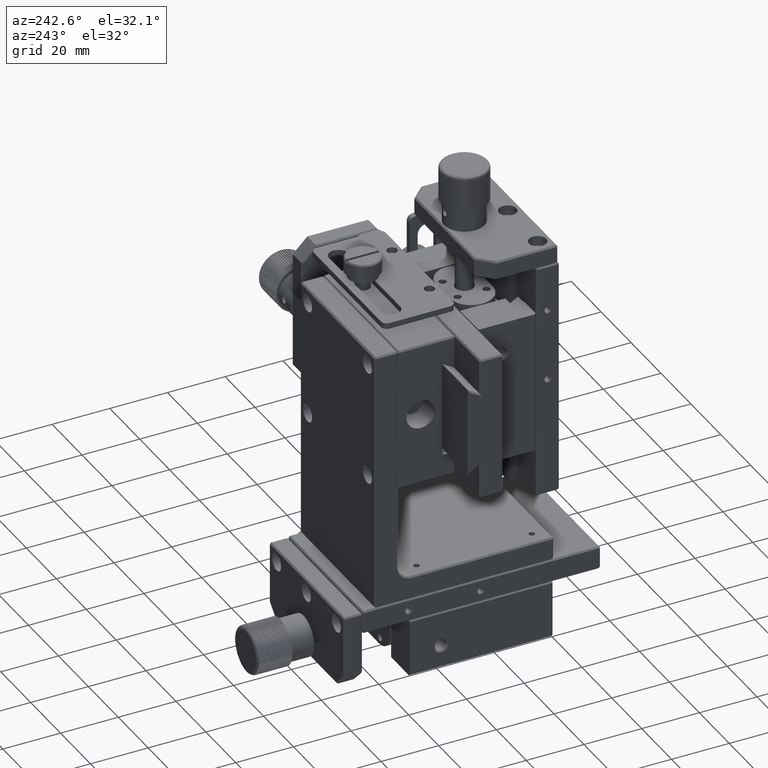
[diagram: clean part render]
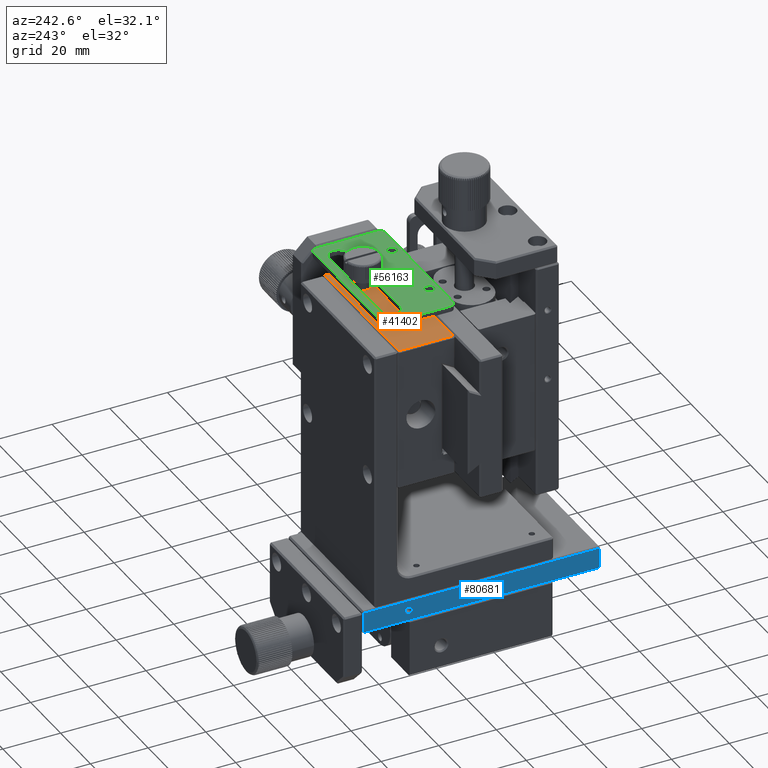
[diagram: same view with three faces highlighted in distinct colors, each labeled with its STEP entity id]
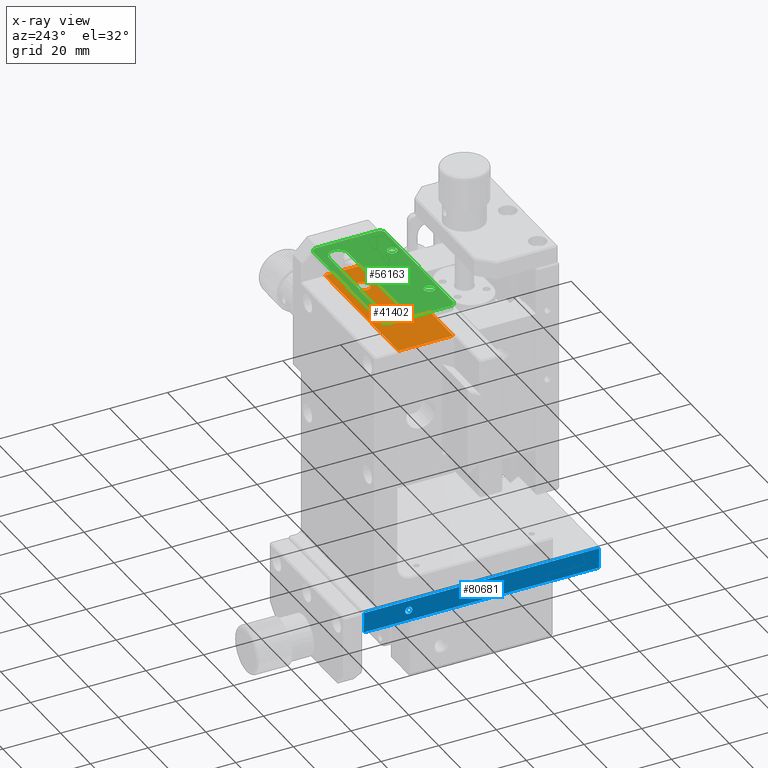
[diagram: x-ray of the same camera — body ghosted, the three highlighted faces saturated]
A machine part, auxiliary view with three faces highlighted in distinct colors.
The next image is the same camera in x-ray (body ghosted, the three faces saturated) — at least one of them is partly hidden behind the body in this view.
Their STEP definitions:

[orange] entity #41402 — the highlighted planar face has unit normal (0, 0, -1).
#332 = CARTESIAN_POINT ( 'NONE',  ( 11.40000000000000213, 48.00000000000000000, 66.14999999999999147 ) ) ;
#1020 = CARTESIAN_POINT ( 'NONE',  ( 24.89999999999999858, 55.50000000000000711, 66.15000000000000568 ) ) ;
#5361 = CARTESIAN_POINT ( 'NONE',  ( 24.89999999999999858, 36.50000000000000711, 66.15000000000000568 ) ) ;
#6214 = CARTESIAN_POINT ( 'NONE',  ( -24.40000000000000924, 36.50000000000000711, 66.15000000000000568 ) ) ;
#6765 = DIRECTION ( 'NONE',  ( -0.000000000000000000, -1.000000000000000000, -0.000000000000000000 ) ) ;
#7975 = CARTESIAN_POINT ( 'NONE',  ( 24.89999999999999858, 55.50000000000000711, 66.15000000000000568 ) ) ;
#11860 = ORIENTED_EDGE ( 'NONE', *, *, #65947, .T. ) ;
#12761 = VECTOR ( 'NONE', #6765, 1000.000000000000000 ) ;
#13646 = EDGE_CURVE ( 'NONE', #35846, #53746, #31547, .T. ) ;
#14098 = CARTESIAN_POINT ( 'NONE',  ( 24.89999999999999858, 56.00000000000000711, 66.15000000000000568 ) ) ;
#18605 = CARTESIAN_POINT ( 'NONE',  ( -24.40000000000000213, 55.50000000000000711, 66.15000000000000568 ) ) ;
#18870 = EDGE_LOOP ( 'NONE', ( #40390 ) ) ;
#20597 = FACE_OUTER_BOUND ( 'NONE', #29166, .T. ) ;
#21294 = LINE ( 'NONE', #46177, #55507 ) ;
#22509 = FACE_BOUND ( 'NONE', #18870, .T. ) ;
#25081 = LINE ( 'NONE', #1020, #58496 ) ;
#25116 = LINE ( 'NONE', #56086, #12761 ) ;
#25561 = EDGE_CURVE ( 'NONE', #33031, #35846, #21294, .T. ) ;
#25813 = DIRECTION ( 'NONE',  ( 0.000000000000000000, 1.000000000000000000, 0.000000000000000000 ) ) ;
#25860 = VECTOR ( 'NONE', #25813, 1000.000000000000000 ) ;
#29166 = EDGE_LOOP ( 'NONE', ( #49250, #57171, #11860, #35559 ) ) ;
#29454 = CIRCLE ( 'NONE', #71088, 2.500000000000000444 ) ;
#29683 = CARTESIAN_POINT ( 'NONE',  ( 13.90000000000000213, 48.00000000000000000, 66.14999999999999147 ) ) ;
#31547 = LINE ( 'NONE', #49892, #25860 ) ;
#32841 = PLANE ( 'NONE',  #35554 ) ;
#33031 = VERTEX_POINT ( 'NONE', #5361 ) ;
#35554 = AXIS2_PLACEMENT_3D ( 'NONE', #14098, #53891, #69908 ) ;
#35559 = ORIENTED_EDGE ( 'NONE', *, *, #13646, .F. ) ;
#35846 = VERTEX_POINT ( 'NONE', #6214 ) ;
#40390 = ORIENTED_EDGE ( 'NONE', *, *, #63258, .F. ) ;
#41126 = DIRECTION ( 'NONE',  ( -0.000000000000000000, -0.000000000000000000, 1.000000000000000000 ) ) ;
#41402 = ADVANCED_FACE ( 'NONE', ( #20597, #22509 ), #32841, .F. ) ;
#43752 = VERTEX_POINT ( 'NONE', #7975 ) ;
#46177 = CARTESIAN_POINT ( 'NONE',  ( 24.89999999999999858, 36.50000000000000711, 66.15000000000000568 ) ) ;
#47634 = DIRECTION ( 'NONE',  ( -1.000000000000000000, 0.000000000000000000, 0.000000000000000000 ) ) ;
#49227 = VERTEX_POINT ( 'NONE', #332 ) ;
#49250 = ORIENTED_EDGE ( 'NONE', *, *, #25561, .F. ) ;
#49892 = CARTESIAN_POINT ( 'NONE',  ( -24.39999999999999858, 56.00000000000000711, 66.15000000000000568 ) ) ;
#53746 = VERTEX_POINT ( 'NONE', #18605 ) ;
#53891 = DIRECTION ( 'NONE',  ( 0.000000000000000000, 0.000000000000000000, -1.000000000000000000 ) ) ;
#55507 = VECTOR ( 'NONE', #64911, 1000.000000000000000 ) ;
#56086 = CARTESIAN_POINT ( 'NONE',  ( 24.89999999999999858, 36.00000000000000711, 66.15000000000000568 ) ) ;
#56847 = DIRECTION ( 'NONE',  ( -1.000000000000000000, -0.000000000000000000, -0.000000000000000000 ) ) ;
#57171 = ORIENTED_EDGE ( 'NONE', *, *, #64979, .F. ) ;
#58496 = VECTOR ( 'NONE', #56847, 1000.000000000000000 ) ;
#63258 = EDGE_CURVE ( 'NONE', #49227, #49227, #29454, .T. ) ;
#64911 = DIRECTION ( 'NONE',  ( -1.000000000000000000, 0.000000000000000000, 0.000000000000000000 ) ) ;
#64979 = EDGE_CURVE ( 'NONE', #43752, #33031, #25116, .T. ) ;
#65947 = EDGE_CURVE ( 'NONE', #43752, #53746, #25081, .T. ) ;
#69908 = DIRECTION ( 'NONE',  ( -1.000000000000000000, 0.000000000000000000, 0.000000000000000000 ) ) ;
#71088 = AXIS2_PLACEMENT_3D ( 'NONE', #29683, #41126, #47634 ) ;

[blue] entity #80681 — the highlighted planar face has unit normal (1, 0, 0).
#3500 = DIRECTION ( 'NONE',  ( -0.000000000000000000, -0.000000000000000000, 1.000000000000000000 ) ) ;
#3930 = CARTESIAN_POINT ( 'NONE',  ( -24.99999999997726263, 53.50000000004638423, -28.75000000000000000 ) ) ;
#6201 = ORIENTED_EDGE ( 'NONE', *, *, #65742, .F. ) ;
#7766 = LINE ( 'NONE', #19597, #69156 ) ;
#7802 = DIRECTION ( 'NONE',  ( 0.000000000000000000, 1.000000000000000000, 0.000000000000000000 ) ) ;
#7842 = EDGE_LOOP ( 'NONE', ( #12157, #17959, #57153, #6201 ) ) ;
#9533 = EDGE_CURVE ( 'NONE', #16984, #16984, #76953, .T. ) ;
#12157 = ORIENTED_EDGE ( 'NONE', *, *, #78639, .F. ) ;
#14961 = CARTESIAN_POINT ( 'NONE',  ( -25.00000000000000000, 67.75000000000000000, -32.75000000000000000 ) ) ;
#16051 = EDGE_CURVE ( 'NONE', #71454, #48875, #79766, .T. ) ;
#16984 = VERTEX_POINT ( 'NONE', #3930 ) ;
#17959 = ORIENTED_EDGE ( 'NONE', *, *, #16051, .F. ) ;
#18059 = CARTESIAN_POINT ( 'NONE',  ( -24.99999999992042277, 27.25000000000000355, -27.49999999998772537 ) ) ;
#19597 = CARTESIAN_POINT ( 'NONE',  ( -25.00000000000000000, 68.25000000000000000, -25.25000000000000000 ) ) ;
#23695 = FACE_BOUND ( 'NONE', #35231, .T. ) ;
#24483 = CARTESIAN_POINT ( 'NONE',  ( -25.00000000000000000, 68.25000000000000000, -32.75000000000000000 ) ) ;
#26859 = ORIENTED_EDGE ( 'NONE', *, *, #9533, .F. ) ;
#27176 = LINE ( 'NONE', #14961, #31081 ) ;
#27549 = VECTOR ( 'NONE', #29478, 1000.000000000000000 ) ;
#29478 = DIRECTION ( 'NONE',  ( -0.000000000000000000, 1.000000000000000000, -0.000000000000000000 ) ) ;
#30456 = EDGE_CURVE ( 'NONE', #68562, #68562, #67110, .T. ) ;
#31081 = VECTOR ( 'NONE', #3500, 1000.000000000000000 ) ;
#31991 = AXIS2_PLACEMENT_3D ( 'NONE', #64138, #77557, #46587 ) ;
#33309 = CARTESIAN_POINT ( 'NONE',  ( -25.00000000000000000, 68.25000000000000000, -32.25000000000000000 ) ) ;
#35231 = EDGE_LOOP ( 'NONE', ( #77098 ) ) ;
#35288 = AXIS2_PLACEMENT_3D ( 'NONE', #38004, #56731, #7802 ) ;
#35539 = FACE_OUTER_BOUND ( 'NONE', #7842, .T. ) ;
#36332 = PLANE ( 'NONE',  #59082 ) ;
#38004 = CARTESIAN_POINT ( 'NONE',  ( -24.99999999997726263, 52.25000000000000711, -28.75000000000000000 ) ) ;
#42058 = DIRECTION ( 'NONE',  ( 0.000000000000000000, -1.000000000000000000, 0.000000000000000000 ) ) ;
#42246 = VERTEX_POINT ( 'NONE', #57804 ) ;
#44876 = CARTESIAN_POINT ( 'NONE',  ( -25.00000000000000000, 67.75000000000000000, -25.25000000000000000 ) ) ;
#46534 = CARTESIAN_POINT ( 'NONE',  ( -25.00000000000000000, -13.75000000000000533, -25.25000000000000000 ) ) ;
#46587 = DIRECTION ( 'NONE',  ( -2.775557561535633446E-15, 0.000000000000000000, 1.000000000000000000 ) ) ;
#48875 = VERTEX_POINT ( 'NONE', #71810 ) ;
#49200 = DIRECTION ( 'NONE',  ( 0.000000000000000000, 0.000000000000000000, -1.000000000000000000 ) ) ;
#51389 = DIRECTION ( 'NONE',  ( 0.000000000000000000, 1.000000000000000000, 0.000000000000000000 ) ) ;
#54047 = VERTEX_POINT ( 'NONE', #44876 ) ;
#56731 = DIRECTION ( 'NONE',  ( -1.000000000000000000, 0.000000000000000000, 0.000000000000000000 ) ) ;
#57153 = ORIENTED_EDGE ( 'NONE', *, *, #73327, .T. ) ;
#57804 = CARTESIAN_POINT ( 'NONE',  ( -25.00000000000000000, 67.75000000000000000, -32.25000000000000000 ) ) ;
#59082 = AXIS2_PLACEMENT_3D ( 'NONE', #24483, #68105, #42058 ) ;
#61605 = FACE_BOUND ( 'NONE', #65319, .T. ) ;
#64138 = CARTESIAN_POINT ( 'NONE',  ( -24.99999999992041921, 27.25000000000000355, -28.75000000000000000 ) ) ;
#65319 = EDGE_LOOP ( 'NONE', ( #26859 ) ) ;
#65742 = EDGE_CURVE ( 'NONE', #42246, #54047, #27176, .T. ) ;
#67110 = CIRCLE ( 'NONE', #31991, 1.250000000012275958 ) ;
#68105 = DIRECTION ( 'NONE',  ( 1.000000000000000000, 0.000000000000000000, 0.000000000000000000 ) ) ;
#68331 = CARTESIAN_POINT ( 'NONE',  ( -25.00000000000000000, -13.75000000000000000, -32.75000000000000000 ) ) ;
#68562 = VERTEX_POINT ( 'NONE', #18059 ) ;
#69156 = VECTOR ( 'NONE', #51389, 1000.000000000000000 ) ;
#71454 = VERTEX_POINT ( 'NONE', #46534 ) ;
#71810 = CARTESIAN_POINT ( 'NONE',  ( -25.00000000000000000, -13.75000000000000355, -32.25000000000000000 ) ) ;
#73327 = EDGE_CURVE ( 'NONE', #71454, #54047, #7766, .T. ) ;
#76953 = CIRCLE ( 'NONE', #35288, 1.250000000046380677 ) ;
#76963 = VECTOR ( 'NONE', #49200, 1000.000000000000000 ) ;
#77098 = ORIENTED_EDGE ( 'NONE', *, *, #30456, .F. ) ;
#77557 = DIRECTION ( 'NONE',  ( -1.000000000000000000, 0.000000000000000000, -1.387778780830925398E-15 ) ) ;
#78639 = EDGE_CURVE ( 'NONE', #48875, #42246, #79203, .T. ) ;
#79203 = LINE ( 'NONE', #33309, #27549 ) ;
#79766 = LINE ( 'NONE', #68331, #76963 ) ;
#80681 = ADVANCED_FACE ( 'NONE', ( #35539, #23695, #61605 ), #36332, .F. ) ;

[green] entity #56163 — the highlighted planar face has unit normal (0, 0, -1).
#453 = AXIS2_PLACEMENT_3D ( 'NONE', #13763, #13365, #38628 ) ;
#1235 = LINE ( 'NONE', #14275, #26511 ) ;
#1753 = VECTOR ( 'NONE', #27899, 1000.000000000000000 ) ;
#1865 = CIRCLE ( 'NONE', #12268, 3.249999999999999556 ) ;
#2418 = VERTEX_POINT ( 'NONE', #69836 ) ;
#2503 = CIRCLE ( 'NONE', #14195, 3.249999999999999556 ) ;
#2783 = LINE ( 'NONE', #27639, #9579 ) ;
#3944 = ORIENTED_EDGE ( 'NONE', *, *, #76406, .F. ) ;
#4362 = LINE ( 'NONE', #29234, #51239 ) ;
#5152 = VERTEX_POINT ( 'NONE', #30452 ) ;
#6431 = CARTESIAN_POINT ( 'NONE',  ( 35.25000000000000000, 29.00000000000000000, 68.25000000000000000 ) ) ;
#8522 = VERTEX_POINT ( 'NONE', #70052 ) ;
#8702 = ORIENTED_EDGE ( 'NONE', *, *, #59336, .F. ) ;
#8708 = EDGE_CURVE ( 'NONE', #65427, #36670, #64938, .T. ) ;
#9579 = VECTOR ( 'NONE', #52501, 1000.000000000000000 ) ;
#9784 = CARTESIAN_POINT ( 'NONE',  ( -4.750000000000004441, 44.75000000000000000, 68.25000000000000000 ) ) ;
#11387 = DIRECTION ( 'NONE',  ( -1.000000000000000000, 0.000000000000000000, 0.000000000000000000 ) ) ;
#12268 = AXIS2_PLACEMENT_3D ( 'NONE', #79859, #74968, #11387 ) ;
#12481 = AXIS2_PLACEMENT_3D ( 'NONE', #68109, #12679, #69706 ) ;
#12679 = DIRECTION ( 'NONE',  ( 0.000000000000000000, 0.000000000000000000, -1.000000000000000000 ) ) ;
#13365 = DIRECTION ( 'NONE',  ( -0.000000000000000000, -0.000000000000000000, 1.000000000000000000 ) ) ;
#13429 = CIRCLE ( 'NONE', #453, 1.750000000000000000 ) ;
#13763 = CARTESIAN_POINT ( 'NONE',  ( 0.2500000000000002220, 32.00000000000000000, 68.25000000000000000 ) ) ;
#14195 = AXIS2_PLACEMENT_3D ( 'NONE', #65052, #20640, #64656 ) ;
#14275 = CARTESIAN_POINT ( 'NONE',  ( 35.25000000000000000, 54.00000000000000711, 68.25000000000000000 ) ) ;
#15787 = CARTESIAN_POINT ( 'NONE',  ( 35.25000000000000000, 54.00000000000000711, 68.25000000000000000 ) ) ;
#16293 = ORIENTED_EDGE ( 'NONE', *, *, #79754, .F. ) ;
#17179 = EDGE_CURVE ( 'NONE', #41011, #59393, #58727, .T. ) ;
#18320 = DIRECTION ( 'NONE',  ( -1.000000000000000000, 0.000000000000000000, 0.000000000000000000 ) ) ;
#18324 = DIRECTION ( 'NONE',  ( 0.000000000000000000, 0.000000000000000000, -1.000000000000000000 ) ) ;
#18579 = EDGE_LOOP ( 'NONE', ( #33411, #56704, #41262, #50845 ) ) ;
#20113 = EDGE_CURVE ( 'NONE', #21516, #29675, #2503, .T. ) ;
#20368 = DIRECTION ( 'NONE',  ( -0.000000000000000000, -0.000000000000000000, 1.000000000000000000 ) ) ;
#20640 = DIRECTION ( 'NONE',  ( -0.000000000000000000, -0.000000000000000000, 1.000000000000000000 ) ) ;
#21481 = LINE ( 'NONE', #32941, #31540 ) ;
#21516 = VERTEX_POINT ( 'NONE', #64149 ) ;
#24291 = CARTESIAN_POINT ( 'NONE',  ( 30.25000000000000711, 51.25000000000000711, 68.25000000000000000 ) ) ;
#24340 = ORIENTED_EDGE ( 'NONE', *, *, #17179, .F. ) ;
#26291 = CARTESIAN_POINT ( 'NONE',  ( -9.750000000000001776, 29.00000000000000000, 68.25000000000000000 ) ) ;
#26511 = VECTOR ( 'NONE', #33413, 1000.000000000000000 ) ;
#26885 = CARTESIAN_POINT ( 'NONE',  ( 37.25000000000000000, 52.00000000000000711, 68.25000000000000000 ) ) ;
#27107 = VERTEX_POINT ( 'NONE', #9784 ) ;
#27387 = EDGE_CURVE ( 'NONE', #48669, #27107, #1865, .T. ) ;
#27639 = CARTESIAN_POINT ( 'NONE',  ( -11.75000000000000000, 31.00000000000000000, 68.25000000000000000 ) ) ;
#27899 = DIRECTION ( 'NONE',  ( -0.000000000000000000, -1.000000000000000000, -0.000000000000000000 ) ) ;
#29234 = CARTESIAN_POINT ( 'NONE',  ( 35.25000000000000000, 51.25000000000000711, 68.25000000000000000 ) ) ;
#29331 = CARTESIAN_POINT ( 'NONE',  ( 35.25000000000000000, 52.00000000000000711, 68.25000000000000000 ) ) ;
#29568 = ORIENTED_EDGE ( 'NONE', *, *, #70937, .F. ) ;
#29613 = CARTESIAN_POINT ( 'NONE',  ( -4.750000000000004441, 51.25000000000000711, 68.25000000000000000 ) ) ;
#29675 = VERTEX_POINT ( 'NONE', #24291 ) ;
#30452 = CARTESIAN_POINT ( 'NONE',  ( -9.750000000000001776, 53.99999999999999289, 68.25000000000000000 ) ) ;
#30714 = CARTESIAN_POINT ( 'NONE',  ( 35.25000000000000000, 52.00000000000000711, 68.25000000000000000 ) ) ;
#30779 = VERTEX_POINT ( 'NONE', #80517 ) ;
#31360 = AXIS2_PLACEMENT_3D ( 'NONE', #63996, #20368, #70091 ) ;
#31540 = VECTOR ( 'NONE', #71189, 1000.000000000000000 ) ;
#31701 = CARTESIAN_POINT ( 'NONE',  ( -9.750000000000001776, 30.99999999999998934, 68.25000000000000000 ) ) ;
#31718 = DIRECTION ( 'NONE',  ( -1.000000000000000000, 0.000000000000000000, -0.000000000000000000 ) ) ;
#32941 = CARTESIAN_POINT ( 'NONE',  ( 35.25000000000000000, 44.75000000000000000, 68.25000000000000000 ) ) ;
#33411 = ORIENTED_EDGE ( 'NONE', *, *, #20113, .F. ) ;
#33413 = DIRECTION ( 'NONE',  ( 1.000000000000000000, -0.000000000000000000, -0.000000000000000000 ) ) ;
#34687 = CARTESIAN_POINT ( 'NONE',  ( 23.50000000000000000, 32.00000000000000000, 68.25000000000000000 ) ) ;
#35560 = ORIENTED_EDGE ( 'NONE', *, *, #8708, .F. ) ;
#35764 = DIRECTION ( 'NONE',  ( -1.000000000000000000, 0.000000000000000000, 0.000000000000000000 ) ) ;
#36670 = VERTEX_POINT ( 'NONE', #67711 ) ;
#38628 = DIRECTION ( 'NONE',  ( -1.000000000000000000, 0.000000000000000000, 0.000000000000000000 ) ) ;
#39598 = EDGE_CURVE ( 'NONE', #60747, #60747, #61327, .T. ) ;
#39728 = DIRECTION ( 'NONE',  ( -1.000000000000000000, 0.000000000000000000, 0.000000000000000000 ) ) ;
#39749 = LINE ( 'NONE', #64603, #1753 ) ;
#41011 = VERTEX_POINT ( 'NONE', #15787 ) ;
#41262 = ORIENTED_EDGE ( 'NONE', *, *, #27387, .F. ) ;
#41611 = CARTESIAN_POINT ( 'NONE',  ( 37.25000000000000000, 31.00000000000000711, 68.25000000000000000 ) ) ;
#41737 = FACE_BOUND ( 'NONE', #18579, .T. ) ;
#42155 = FACE_OUTER_BOUND ( 'NONE', #78649, .T. ) ;
#42288 = EDGE_CURVE ( 'NONE', #27107, #21516, #21481, .T. ) ;
#42814 = AXIS2_PLACEMENT_3D ( 'NONE', #68437, #18324, #74976 ) ;
#42950 = FACE_BOUND ( 'NONE', #49663, .T. ) ;
#43363 = DIRECTION ( 'NONE',  ( 0.000000000000000000, 0.000000000000000000, -1.000000000000000000 ) ) ;
#43433 = EDGE_CURVE ( 'NONE', #2418, #8522, #2783, .T. ) ;
#43529 = EDGE_CURVE ( 'NONE', #29675, #48669, #4362, .T. ) ;
#45440 = EDGE_CURVE ( 'NONE', #8522, #5152, #61948, .T. ) ;
#45867 = ORIENTED_EDGE ( 'NONE', *, *, #43433, .F. ) ;
#47101 = EDGE_LOOP ( 'NONE', ( #67555 ) ) ;
#48669 = VERTEX_POINT ( 'NONE', #29613 ) ;
#49410 = AXIS2_PLACEMENT_3D ( 'NONE', #31701, #68761, #39728 ) ;
#49663 = EDGE_LOOP ( 'NONE', ( #16293 ) ) ;
#50845 = ORIENTED_EDGE ( 'NONE', *, *, #43529, .F. ) ;
#51239 = VECTOR ( 'NONE', #35764, 1000.000000000000000 ) ;
#52501 = DIRECTION ( 'NONE',  ( 0.000000000000000000, 1.000000000000000000, 0.000000000000000000 ) ) ;
#53283 = CIRCLE ( 'NONE', #49410, 1.999999999999989564 ) ;
#55435 = ORIENTED_EDGE ( 'NONE', *, *, #63408, .F. ) ;
#55529 = VECTOR ( 'NONE', #31718, 1000.000000000000000 ) ;
#56163 = ADVANCED_FACE ( 'NONE', ( #42155, #42950, #62095, #41737 ), #60492, .F. ) ;
#56704 = ORIENTED_EDGE ( 'NONE', *, *, #42288, .F. ) ;
#58727 = CIRCLE ( 'NONE', #65234, 2.000000000000001776 ) ;
#59336 = EDGE_CURVE ( 'NONE', #5152, #41011, #1235, .T. ) ;
#59393 = VERTEX_POINT ( 'NONE', #26885 ) ;
#60492 = PLANE ( 'NONE',  #79452 ) ;
#60747 = VERTEX_POINT ( 'NONE', #34687 ) ;
#61327 = CIRCLE ( 'NONE', #31360, 1.750000000000001554 ) ;
#61948 = CIRCLE ( 'NONE', #12481, 1.999999999999989564 ) ;
#62095 = FACE_BOUND ( 'NONE', #47101, .T. ) ;
#63408 = EDGE_CURVE ( 'NONE', #36670, #68708, #74517, .T. ) ;
#63996 = CARTESIAN_POINT ( 'NONE',  ( 25.25000000000000000, 32.00000000000000000, 68.25000000000000000 ) ) ;
#64149 = CARTESIAN_POINT ( 'NONE',  ( 30.25000000000000711, 44.75000000000000000, 68.25000000000000000 ) ) ;
#64603 = CARTESIAN_POINT ( 'NONE',  ( 37.25000000000000000, 52.00000000000000711, 68.25000000000000000 ) ) ;
#64656 = DIRECTION ( 'NONE',  ( -1.000000000000000000, 0.000000000000000000, 0.000000000000000000 ) ) ;
#64938 = CIRCLE ( 'NONE', #42814, 2.000000000000001776 ) ;
#65052 = CARTESIAN_POINT ( 'NONE',  ( 30.25000000000000711, 48.00000000000000000, 68.25000000000000000 ) ) ;
#65234 = AXIS2_PLACEMENT_3D ( 'NONE', #29331, #66433, #18320 ) ;
#65427 = VERTEX_POINT ( 'NONE', #41611 ) ;
#66433 = DIRECTION ( 'NONE',  ( 0.000000000000000000, 0.000000000000000000, -1.000000000000000000 ) ) ;
#66607 = DIRECTION ( 'NONE',  ( -1.000000000000000000, 0.000000000000000000, 0.000000000000000000 ) ) ;
#67555 = ORIENTED_EDGE ( 'NONE', *, *, #39598, .F. ) ;
#67711 = CARTESIAN_POINT ( 'NONE',  ( 35.25000000000000000, 29.00000000000000355, 68.25000000000000000 ) ) ;
#68109 = CARTESIAN_POINT ( 'NONE',  ( -9.750000000000001776, 52.00000000000000711, 68.25000000000000000 ) ) ;
#68437 = CARTESIAN_POINT ( 'NONE',  ( 35.25000000000000000, 31.00000000000001066, 68.25000000000000000 ) ) ;
#68508 = ORIENTED_EDGE ( 'NONE', *, *, #45440, .F. ) ;
#68708 = VERTEX_POINT ( 'NONE', #26291 ) ;
#68761 = DIRECTION ( 'NONE',  ( 0.000000000000000000, 0.000000000000000000, -1.000000000000000000 ) ) ;
#69706 = DIRECTION ( 'NONE',  ( -1.000000000000000000, 0.000000000000000000, 0.000000000000000000 ) ) ;
#69836 = CARTESIAN_POINT ( 'NONE',  ( -11.74999999999999645, 30.99999999999998934, 68.25000000000000000 ) ) ;
#70052 = CARTESIAN_POINT ( 'NONE',  ( -11.75000000000000000, 52.00000000000000711, 68.25000000000000000 ) ) ;
#70091 = DIRECTION ( 'NONE',  ( -1.000000000000000000, 0.000000000000000000, 0.000000000000000000 ) ) ;
#70937 = EDGE_CURVE ( 'NONE', #68708, #2418, #53283, .T. ) ;
#71189 = DIRECTION ( 'NONE',  ( 1.000000000000000000, -0.000000000000000000, -0.000000000000000000 ) ) ;
#74517 = LINE ( 'NONE', #6431, #55529 ) ;
#74968 = DIRECTION ( 'NONE',  ( -0.000000000000000000, -0.000000000000000000, 1.000000000000000000 ) ) ;
#74976 = DIRECTION ( 'NONE',  ( -1.000000000000000000, 0.000000000000000000, 0.000000000000000000 ) ) ;
#76406 = EDGE_CURVE ( 'NONE', #59393, #65427, #39749, .T. ) ;
#78649 = EDGE_LOOP ( 'NONE', ( #8702, #68508, #45867, #29568, #55435, #35560, #3944, #24340 ) ) ;
#79452 = AXIS2_PLACEMENT_3D ( 'NONE', #30714, #43363, #66607 ) ;
#79754 = EDGE_CURVE ( 'NONE', #30779, #30779, #13429, .T. ) ;
#79859 = CARTESIAN_POINT ( 'NONE',  ( -4.750000000000004441, 48.00000000000000000, 68.25000000000000000 ) ) ;
#80517 = CARTESIAN_POINT ( 'NONE',  ( -1.499999999999999778, 32.00000000000000000, 68.25000000000000000 ) ) ;